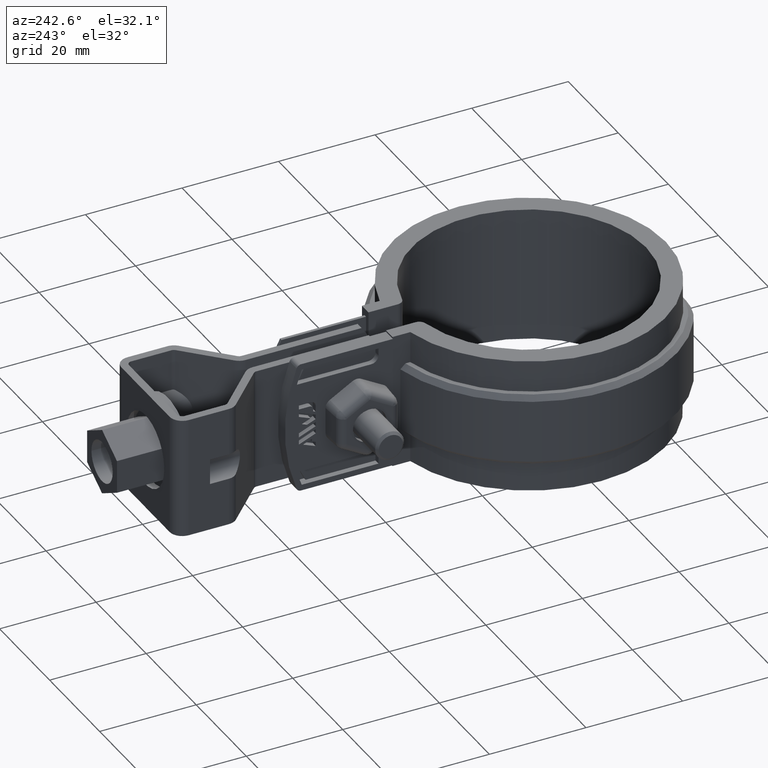
[diagram: clean part render]
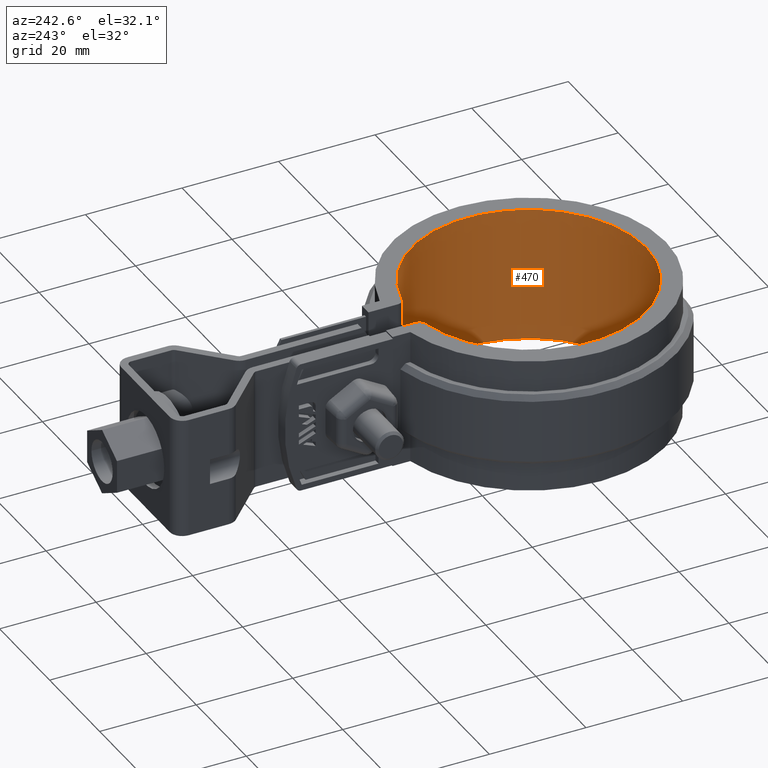
[diagram: same view with one face highlighted and labeled with its STEP entity id]
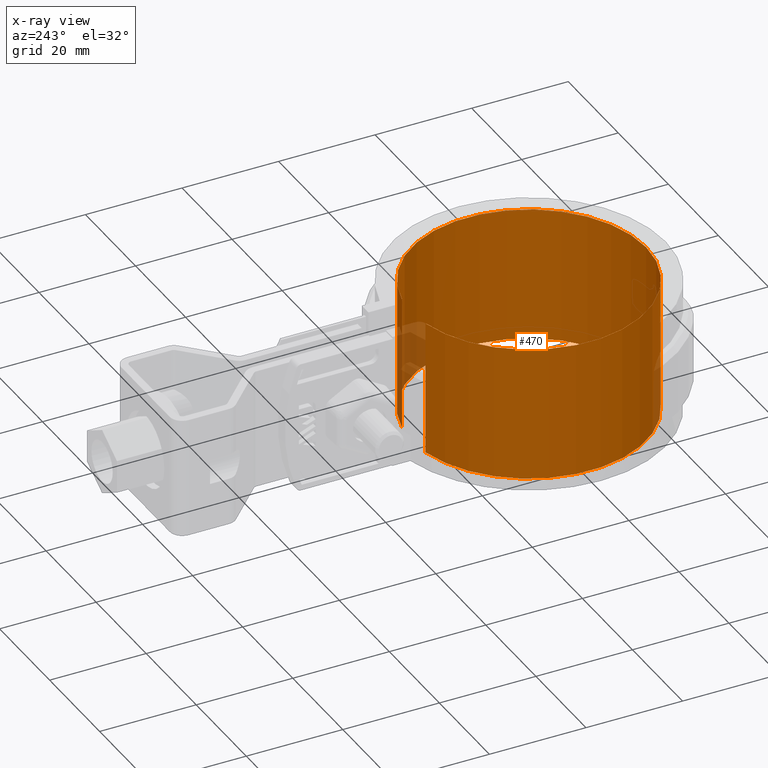
[diagram: x-ray of the same camera — body ghosted, the highlighted face saturated]
A machine part, auxiliary view. The second image highlights one B-rep face of the part: STEP entity #470.
The next image is the same camera in x-ray: the body ghosted, the highlighted face saturated — about 4% of this face is hidden behind the body in this view.
In plain terms, the highlighted cylindrical surface (partial cylindrical patch) has radius 24.3 mm, axis along (0, 0, -1).
Its self-contained STEP definition (entity closure, byte-faithful):
#470 = ADVANCED_FACE( '', ( #940 ), #941, .F. );
#940 = FACE_OUTER_BOUND( '', #2298, .T. );
#941 = CYLINDRICAL_SURFACE( '', #2299, 24.3000000000000 );
#2298 = EDGE_LOOP( '', ( #5136, #5137, #5138, #5139 ) );
#2299 = AXIS2_PLACEMENT_3D( '', #5140, #5141, #5142 );
#5136 = ORIENTED_EDGE( '', *, *, #7663, .F. );
#5137 = ORIENTED_EDGE( '', *, *, #7664, .T. );
#5138 = ORIENTED_EDGE( '', *, *, #7660, .T. );
#5139 = ORIENTED_EDGE( '', *, *, #7654, .T. );
#5140 = CARTESIAN_POINT( '', ( 0.000000000000000, 0.000000000000000, -96.6314213318892 ) );
#5141 = DIRECTION( '', ( 0.000000000000000, 0.000000000000000, -1.00000000000000 ) );
#5142 = DIRECTION( '', ( -1.00000000000000, 0.000000000000000, 0.000000000000000 ) );
#7654 = EDGE_CURVE( '', #8884, #8882, #8885, .F. );
#7660 = EDGE_CURVE( '', #8894, #8884, #8895, .F. );
#7663 = EDGE_CURVE( '', #8899, #8882, #8900, .F. );
#7664 = EDGE_CURVE( '', #8899, #8894, #8901, .T. );
#8882 = VERTEX_POINT( '', #12974 );
#8884 = VERTEX_POINT( '', #12976 );
#8885 = LINE( '', #12977, #12978 );
#8894 = VERTEX_POINT( '', #12990 );
#8895 = CIRCLE( '', #12991, 24.3000000000000 );
#8899 = VERTEX_POINT( '', #12996 );
#8900 = CIRCLE( '', #12997, 24.3000000000000 );
#8901 = LINE( '', #12998, #12999 );
#12974 = CARTESIAN_POINT( '', ( 4.70930232558140, 23.8393051829594, -26.5000000000000 ) );
#12976 = CARTESIAN_POINT( '', ( 4.70930232558140, 23.8393051829594, 1.50000000000000 ) );
#12977 = CARTESIAN_POINT( '', ( 4.70930232558140, 23.8393051829594, -96.6314213318892 ) );
#12978 = VECTOR( '', #14957, 1000.00000000000 );
#12990 = CARTESIAN_POINT( '', ( -4.70930232558140, 23.8393051829594, 1.50000000000000 ) );
#12991 = AXIS2_PLACEMENT_3D( '', #14967, #14968, #14969 );
#12996 = CARTESIAN_POINT( '', ( -4.70930232558140, 23.8393051829594, -26.5000000000000 ) );
#12997 = AXIS2_PLACEMENT_3D( '', #14974, #14975, #14976 );
#12998 = CARTESIAN_POINT( '', ( -4.70930232558140, 23.8393051829594, -96.6314213318892 ) );
#12999 = VECTOR( '', #14977, 1000.00000000000 );
#14957 = DIRECTION( '', ( 0.000000000000000, 0.000000000000000, 1.00000000000000 ) );
#14967 = CARTESIAN_POINT( '', ( 0.000000000000000, 0.000000000000000, 1.50000000000000 ) );
#14968 = DIRECTION( '', ( 0.000000000000000, 0.000000000000000, -1.00000000000000 ) );
#14969 = DIRECTION( '', ( -1.00000000000000, 0.000000000000000, 0.000000000000000 ) );
#14974 = CARTESIAN_POINT( '', ( 0.000000000000000, 0.000000000000000, -26.5000000000000 ) );
#14975 = DIRECTION( '', ( 0.000000000000000, 0.000000000000000, -1.00000000000000 ) );
#14976 = DIRECTION( '', ( -1.00000000000000, 0.000000000000000, 0.000000000000000 ) );
#14977 = DIRECTION( '', ( 0.000000000000000, 0.000000000000000, 1.00000000000000 ) );